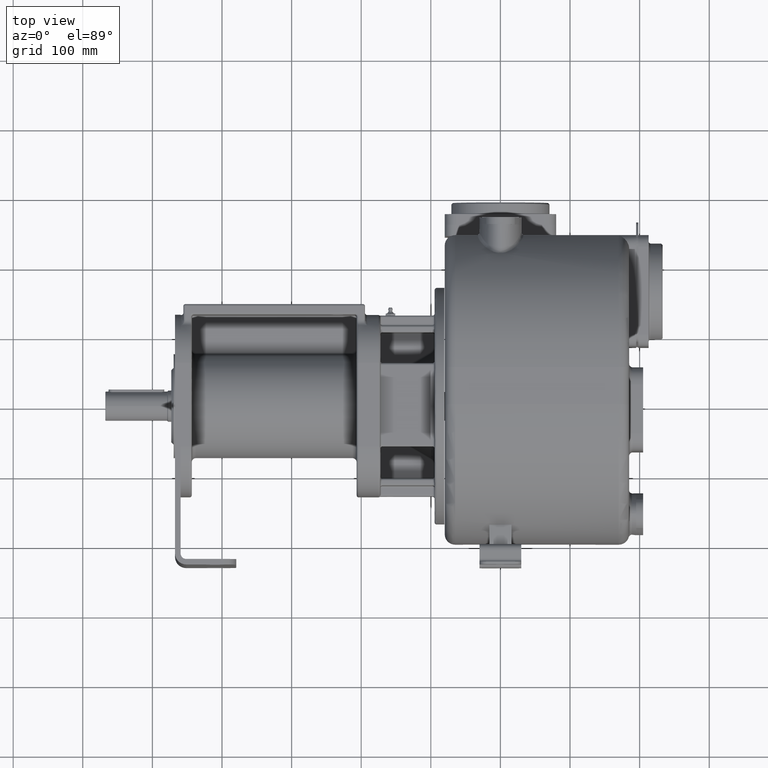
[diagram: clean part render]
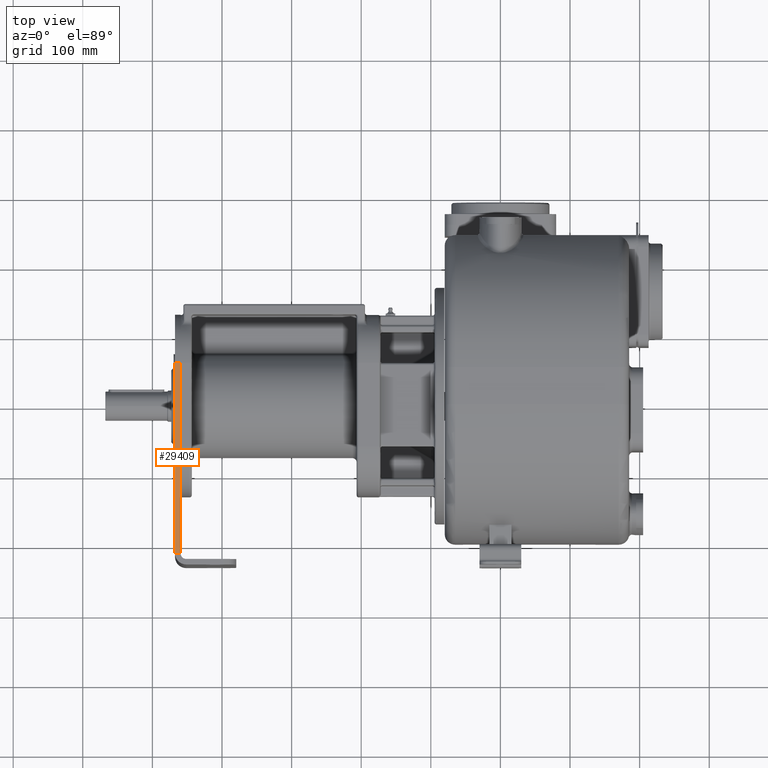
[diagram: same view with one face highlighted and labeled with its STEP entity id]
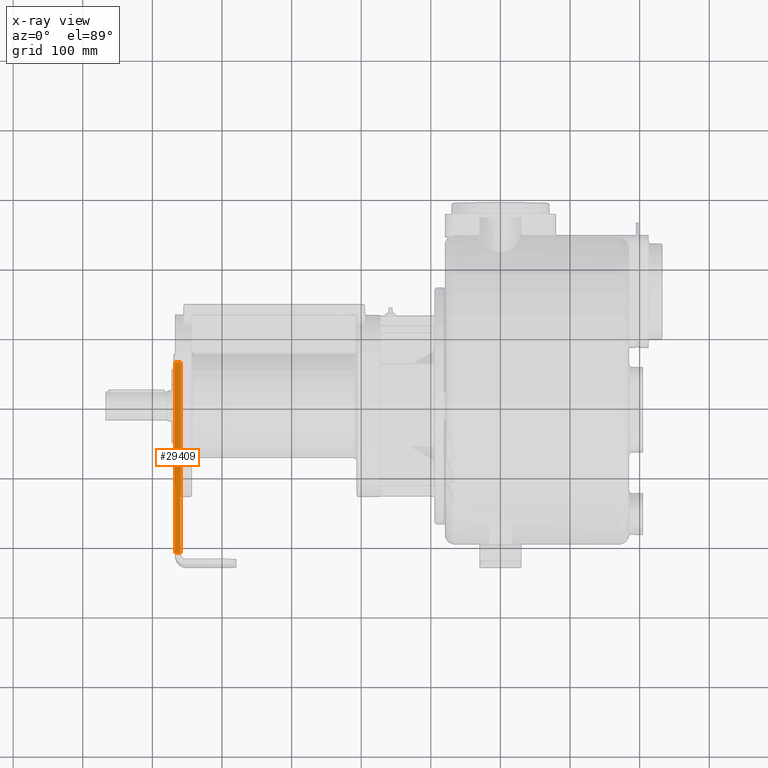
[diagram: x-ray of the same camera — body ghosted, the highlighted face saturated]
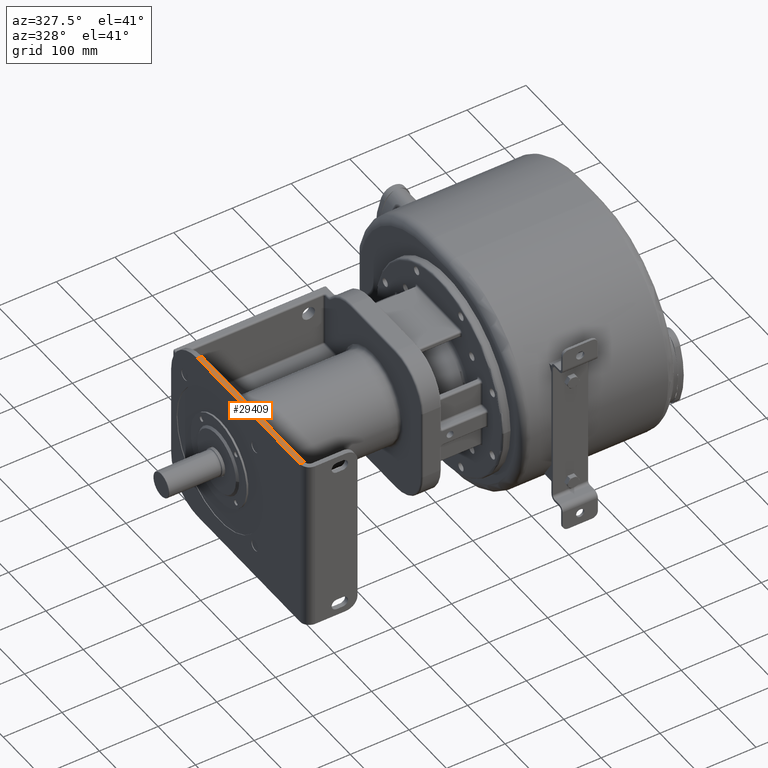
[diagram: same view with one face highlighted and labeled with its STEP entity id]
A machine part, top view. The second image highlights one B-rep face of the part: STEP entity #29409.
The next image is the same camera in x-ray: the body ghosted, the highlighted face saturated — about 0% of this face is hidden behind the body in this view.
A second angle (auxiliary view) of the same face is appended — the face is thin or edge-on in the first view.
In plain terms, the highlighted planar face has unit normal (0, 0, 1).
Its self-contained STEP definition (entity closure, byte-faithful):
#7022=DIRECTION('',(0.E0,-1.E0,0.E0));
#7023=VECTOR('',#7022,2.74E2);
#7024=CARTESIAN_POINT('',(-4.595E2,2.6E2,1.5E2));
#7025=LINE('',#7024,#7023);
#7092=DIRECTION('',(-1.E0,0.E0,0.E0));
#7093=VECTOR('',#7092,8.E0);
#7094=CARTESIAN_POINT('',(-4.595E2,2.6E2,1.5E2));
#7095=LINE('',#7094,#7093);
#7096=DIRECTION('',(1.E0,0.E0,0.E0));
#7097=VECTOR('',#7096,8.E0);
#7098=CARTESIAN_POINT('',(-4.675E2,-1.4E1,1.5E2));
#7099=LINE('',#7098,#7097);
#7302=DIRECTION('',(0.E0,-1.E0,0.E0));
#7303=VECTOR('',#7302,2.74E2);
#7304=CARTESIAN_POINT('',(-4.675E2,2.6E2,1.5E2));
#7305=LINE('',#7304,#7303);
#21525=CARTESIAN_POINT('',(-4.675E2,-1.4E1,1.5E2));
#21526=VERTEX_POINT('',#21525);
#21527=CARTESIAN_POINT('',(-4.675E2,2.6E2,1.5E2));
#21528=VERTEX_POINT('',#21527);
#21535=CARTESIAN_POINT('',(-4.595E2,-1.4E1,1.5E2));
#21536=VERTEX_POINT('',#21535);
#21537=CARTESIAN_POINT('',(-4.595E2,2.6E2,1.5E2));
#21538=VERTEX_POINT('',#21537);
#29396=CARTESIAN_POINT('',(-4.635E2,1.15E2,1.5E2));
#29397=DIRECTION('',(0.E0,0.E0,1.E0));
#29398=DIRECTION('',(0.E0,-1.E0,0.E0));
#29399=AXIS2_PLACEMENT_3D('',#29396,#29397,#29398);
#29400=PLANE('',#29399);
#29401=ORIENTED_EDGE('',*,*,#29305,.T.);
#29403=ORIENTED_EDGE('',*,*,#29402,.F.);
#29405=ORIENTED_EDGE('',*,*,#29404,.F.);
#29406=ORIENTED_EDGE('',*,*,#29388,.F.);
#29407=EDGE_LOOP('',(#29401,#29403,#29405,#29406));
#29408=FACE_OUTER_BOUND('',#29407,.F.);
#29409=ADVANCED_FACE('',(#29408),#29400,.T.);
#29305=EDGE_CURVE('',#21538,#21536,#7025,.T.);
#29388=EDGE_CURVE('',#21538,#21528,#7095,.T.);
#29402=EDGE_CURVE('',#21526,#21536,#7099,.T.);
#29404=EDGE_CURVE('',#21528,#21526,#7305,.T.);